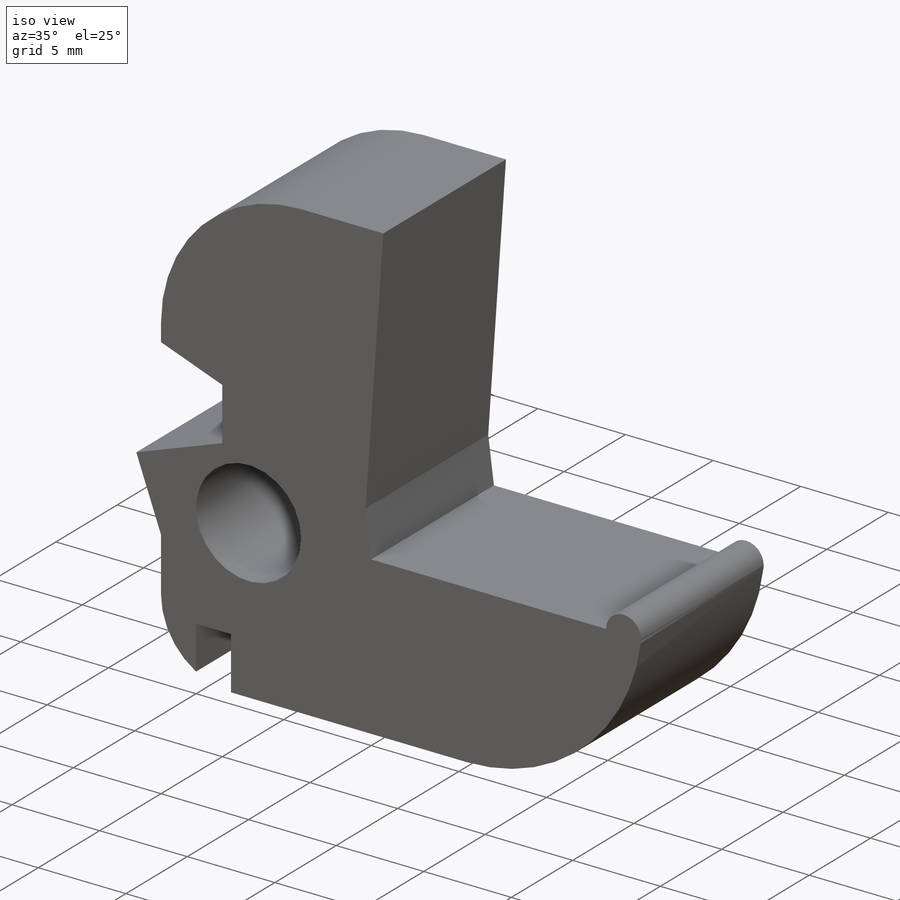
[diagram: iso view]
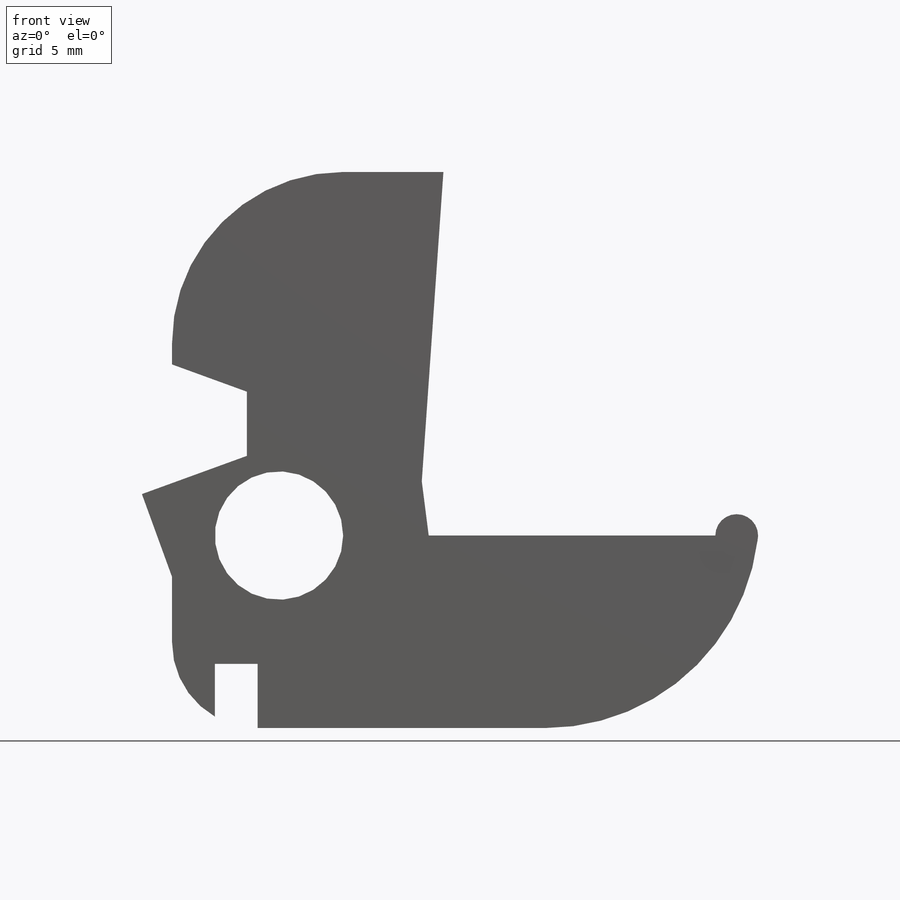
[diagram: front view]
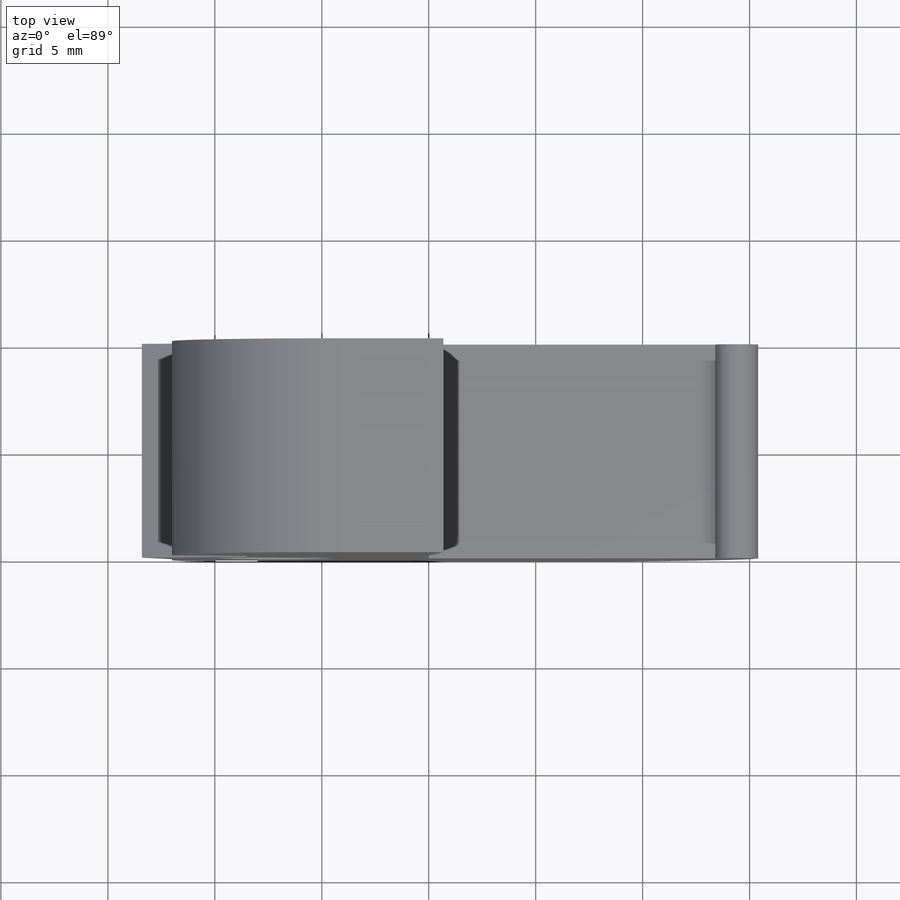
[diagram: top view]
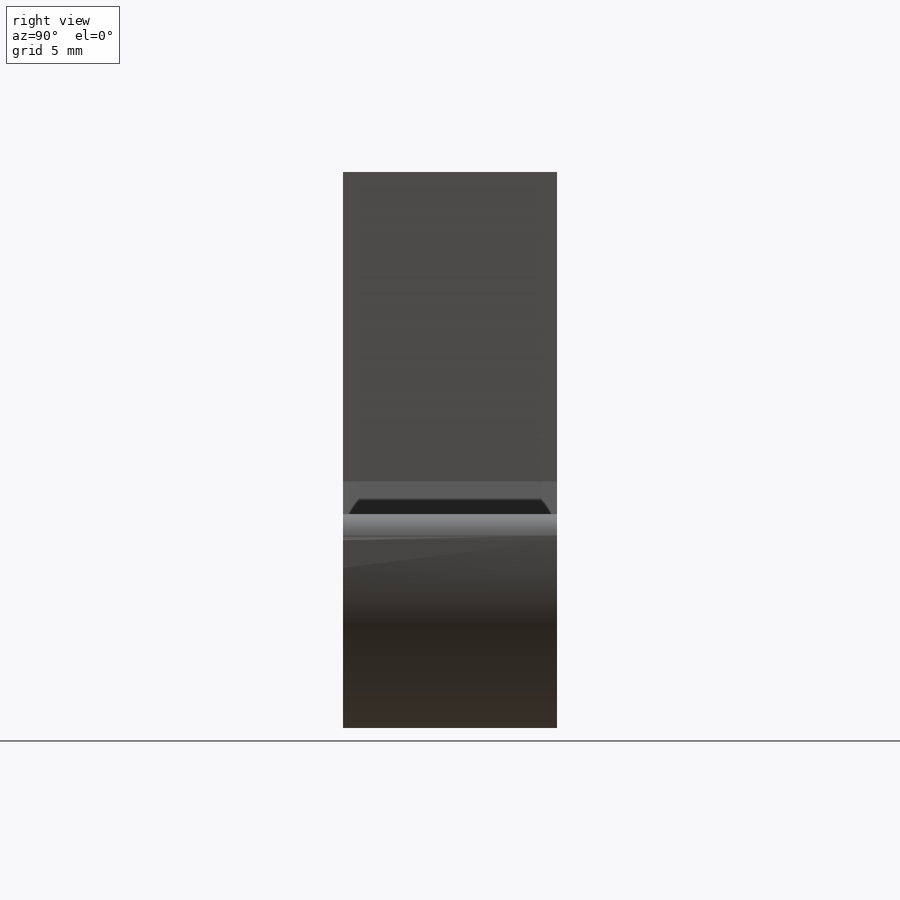
[diagram: right view]
SOLIDWORKS PART (.sldprt)
format: sldprt  version: not decoded by parser v0  size: 344,064 bytes
history: native  units: mm
features: sketch x9, cut_extrude x5, extrude x3, fillet x3, material x1 (+11 scaffold rows collapsed)
feature tree (32):
  scaffold x11  (default folders/planes/origin — collapsed)
  material  "Material <not specified>"
  sketch  "Sketch1"  dims[c1.D1=~46.280033mm c1.D2=~66.746502mm c2.D1=~112.289005mm c2.D2=~173.319646mm c3.D1=10.0mm c3.D2=20.0mm c3.D3=30.0mm c3.D4=5.0mm c3.D5=10.0mm c4.D1=30.0mm c4.D3=20.0mm c4.D4=8.0mm c4.D5=12.0mm c5.D4=20.0mm c5.D5=10.0mm c5.D1=10.0mm c5.D2=9.0mm c5.D3=27.4mm c6.D4=26.0mm c6.D1=17.0mm c7.D1=90.0deg c8.D1=17.0mm c9.D1=86.0deg c9.D5=15.4mm]
  extrude  "Boss-Extrude7"  Depth=10mm
  fillet  "Fillet5"  Radius=8mm
  fillet  "Fillet6"  Radius=10mm
  sketch  "Sketch4"  dims[D1=1.0mm]
  extrude  "Boss-Extrude8"  Depth=0.0001mm
  fillet  "Fillet7"  Radius=4mm
  sketch  "Sketch5"  dims[c1.D2=6.0mm c1.D1=~8.271747mm c2.D1=135.0deg c2.D3=4.0mm c2.D4=~0.108692mm c3.D1=~0.189644mm c3.D2=7.0mm c3.D3=~44.888358mm]
  cut_extrude  "Cut-Extrude1"  Depth=10mm
  sketch  "Sketch6"  dims[D1=3.0mm D2=2.0mm]
  cut_extrude  "Cut-Extrude2"  [1 undecoded]
  sketch  "Sketch7"  dims[c1.D1=11.0mm c1.D2=3.5mm c2.D1=9.0mm c2.D3=3.5mm c3.D3=110.0deg c3.D1=9.0mm c3.D2=3.5mm c4.D2=110.0deg c4.D3=~3.225617mm c5.D3=110.0deg c5.D4=3.5mm c5.D5=3.0mm c5.D6=3.5mm c6.D6=40.0deg c7.D6=3.5mm c8.D6=90.0deg c8.D7=1.5mm]
  cut_extrude  "Cut-Extrude4"  [1 undecoded]
  sketch  "Sketch8"  dims[D1=0.5mm D2=14.5mm]
  cut_extrude  "Cut-Extrude5"  [1 undecoded]
  sketch  "Sketch9"  dims[c1.D1=~2.846546mm c2.D1=90.0deg c2.D2=1.5mm c2.D3=0.0mm]
  extrude  "Boss-Extrude9"  Depth=10mm
  sketch  "Sketch10"  dims[D1=~25.076414mm]
  cut_extrude  "Cut-Extrude6"  [1 undecoded]
  sketch  "Sketch11"  dims[D1=~21.551537mm]
decode coverage: 16 of 20 modeling features carry decoded parameters
note: ~ marks probable driven/reference dimensions
note: 4 parameter values undecoded
summary: no parameter record found for 4 features
note: suppression state not decoded; provenance and decode notes live in map.json
